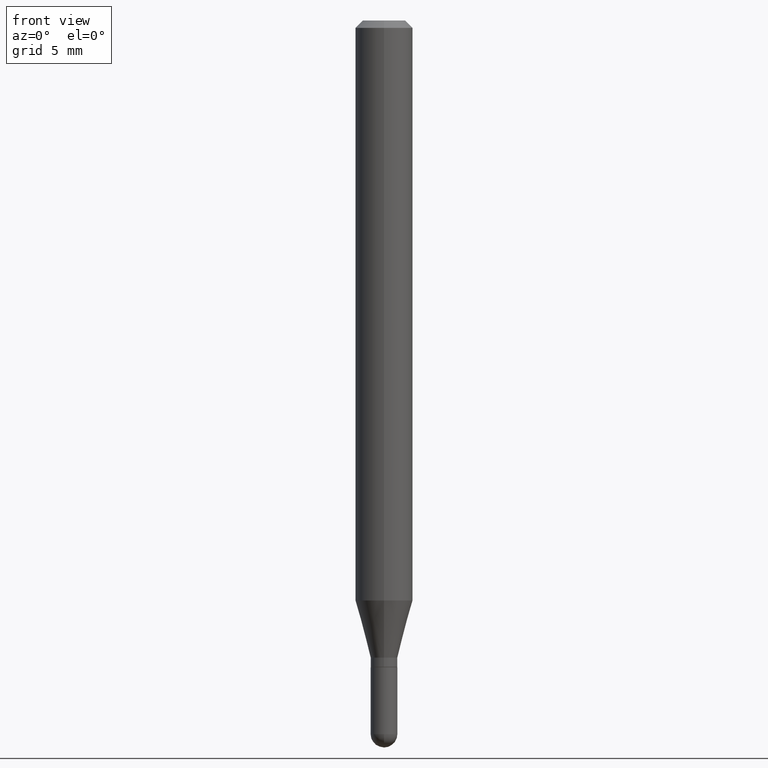
[diagram: clean part render]
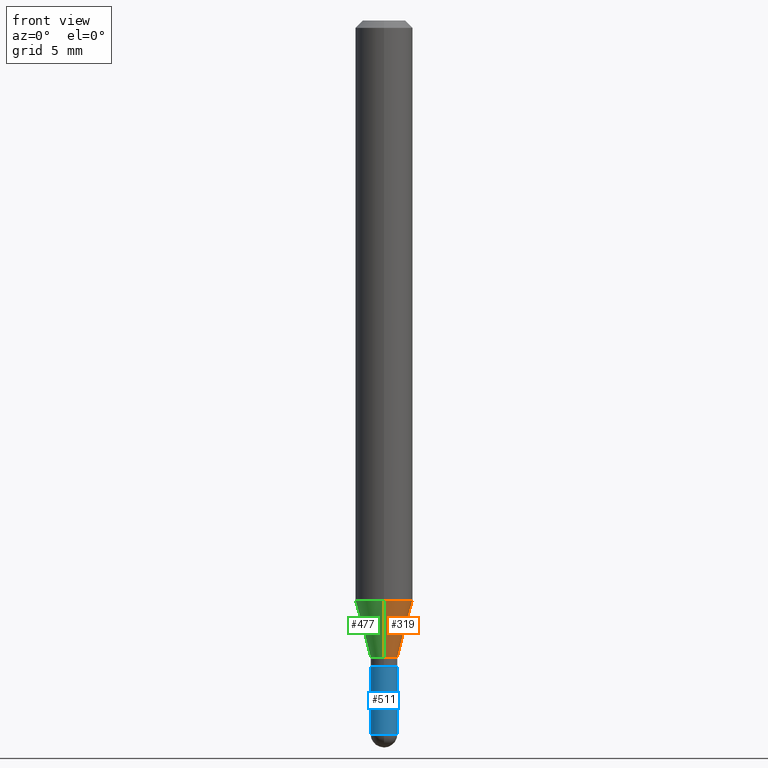
[diagram: same view with three faces highlighted in distinct colors, each labeled with its STEP entity id]
A machine part, front view with three faces highlighted in distinct colors.
Their STEP definitions:

[orange] entity #319 — the highlighted conical surface has half-angle 15 deg.
#1 = CONICAL_SURFACE ( 'NONE', #108, 0.02754999999999965463, 0.2617993877991502960 ) ;
#26 = AXIS2_PLACEMENT_3D ( 'NONE', #426, #385, #425 ) ;
#39 = LINE ( 'NONE', #216, #474 ) ;
#41 = DIRECTION ( 'NONE',  ( -6.982962677686265922E-15, -1.000000000000000000, 0.000000000000000000 ) ) ;
#64 = LINE ( 'NONE', #101, #447 ) ;
#78 = CIRCLE ( 'NONE', #193, 0.02754999999999965463 ) ;
#89 = CARTESIAN_POINT ( 'NONE',  ( 3.206236826016511107E-29, -4.577705994850046141E-15, -1.311099999999999488 ) ) ;
#91 = ORIENTED_EDGE ( 'NONE', *, *, #367, .T. ) ;
#101 = CARTESIAN_POINT ( 'NONE',  ( -1.923806217702221325E-16, -0.02755000000000422736, -1.311099999999999488 ) ) ;
#108 = AXIS2_PLACEMENT_3D ( 'NONE', #89, #368, #41 ) ;
#130 = EDGE_CURVE ( 'NONE', #338, #441, #39, .T. ) ;
#152 = DIRECTION ( 'NONE',  ( -1.807323732225330928E-15, -0.2588190451025182970, 0.9659258262890689783 ) ) ;
#169 = CARTESIAN_POINT ( 'NONE',  ( 3.206236826016511107E-29, -4.577705994850046141E-15, -1.311099999999999488 ) ) ;
#191 = CARTESIAN_POINT ( 'NONE',  ( -1.923806217702221325E-16, -0.02755000000000422736, -1.311099999999999488 ) ) ;
#193 = AXIS2_PLACEMENT_3D ( 'NONE', #169, #331, #476 ) ;
#216 = CARTESIAN_POINT ( 'NONE',  ( 1.957545237019371700E-16, 0.02754999999999507843, -1.311099999999999488 ) ) ;
#224 = EDGE_CURVE ( 'NONE', #409, #441, #482, .T. ) ;
#232 = EDGE_LOOP ( 'NONE', ( #91, #375, #298, #494 ) ) ;
#255 = VERTEX_POINT ( 'NONE', #191 ) ;
#263 = FACE_OUTER_BOUND ( 'NONE', #232, .T. ) ;
#265 = EDGE_CURVE ( 'NONE', #255, #409, #64, .T. ) ;
#273 = CARTESIAN_POINT ( 'NONE',  ( 4.195754854663679906E-16, 0.05904999999999580029, -1.193540399561579424 ) ) ;
#280 = DIRECTION ( 'NONE',  ( 1.839019923739601104E-15, 0.2588190451025250693, 0.9659258262890670910 ) ) ;
#296 = CARTESIAN_POINT ( 'NONE',  ( 3.076650045841527529E-16, 0.02754999999999507843, -1.311099999999999488 ) ) ;
#298 = ORIENTED_EDGE ( 'NONE', *, *, #224, .F. ) ;
#319 = ADVANCED_FACE ( 'NONE', ( #263 ), #1, .T. ) ;
#331 = DIRECTION ( 'NONE',  ( -2.445455591500657940E-29, 3.491500263023452192E-15, 1.000000000000000000 ) ) ;
#338 = VERTEX_POINT ( 'NONE', #296 ) ;
#367 = EDGE_CURVE ( 'NONE', #255, #338, #78, .T. ) ;
#368 = DIRECTION ( 'NONE',  ( -2.445455591500657940E-29, 3.491500263023452192E-15, 1.000000000000000000 ) ) ;
#375 = ORIENTED_EDGE ( 'NONE', *, *, #130, .T. ) ;
#385 = DIRECTION ( 'NONE',  ( -2.445455591500657940E-29, 3.491500263023452192E-15, 1.000000000000000000 ) ) ;
#409 = VERTEX_POINT ( 'NONE', #438 ) ;
#425 = DIRECTION ( 'NONE',  ( -6.982962677686265922E-15, -1.000000000000000000, 4.626330217890369336E-15 ) ) ;
#426 = CARTESIAN_POINT ( 'NONE',  ( 2.918750043789793122E-29, -4.167246618998369739E-15, -1.193540399561579202 ) ) ;
#438 = CARTESIAN_POINT ( 'NONE',  ( -4.123439461173449928E-16, -0.05905000000000418248, -1.193540399561578758 ) ) ;
#441 = VERTEX_POINT ( 'NONE', #273 ) ;
#447 = VECTOR ( 'NONE', #152, 39.37007874015748143 ) ;
#474 = VECTOR ( 'NONE', #280, 39.37007874015748143 ) ;
#476 = DIRECTION ( 'NONE',  ( -6.982962677686265922E-15, -1.000000000000000000, 0.000000000000000000 ) ) ;
#482 = CIRCLE ( 'NONE', #26, 0.05904999999999999832 ) ;
#494 = ORIENTED_EDGE ( 'NONE', *, *, #265, .F. ) ;

[blue] entity #511 — the highlighted cylindrical surface (edge-blend (fillet) strip) has radius 0.6998 mm, axis along (-0, 0, 1).
#12 = EDGE_CURVE ( 'NONE', #332, #347, #212, .T. ) ;
#17 = DIRECTION ( 'NONE',  ( 1.000000000000000000, -6.982962677686265922E-15, 4.876176775795936353E-29 ) ) ;
#24 = FACE_OUTER_BOUND ( 'NONE', #264, .T. ) ;
#63 = CARTESIAN_POINT ( 'NONE',  ( 3.254185340390560677E-29, -4.646114217598572614E-15, -1.330699999999999772 ) ) ;
#70 = DIRECTION ( 'NONE',  ( -2.445468806185136597E-29, 3.491481338843145583E-15, 1.000000000000000000 ) ) ;
#74 = CARTESIAN_POINT ( 'NONE',  ( -0.02755000000000000157, -4.691010045176429992E-15, -1.330699999999999772 ) ) ;
#81 = CARTESIAN_POINT ( 'NONE',  ( -1.923806217702204068E-16, -0.02755000000000508778, -1.468549999999999800 ) ) ;
#82 = CARTESIAN_POINT ( 'NONE',  ( 0.02754999999999999810, -5.079145190648592548E-15, -1.468549999999999800 ) ) ;
#88 = ORIENTED_EDGE ( 'NONE', *, *, #437, .F. ) ;
#96 = ORIENTED_EDGE ( 'NONE', *, *, #471, .T. ) ;
#105 = CARTESIAN_POINT ( 'NONE',  ( 3.591293215323181808E-29, -5.127414920158100475E-15, -1.468549999999999800 ) ) ;
#112 = DIRECTION ( 'NONE',  ( -2.445468806185136597E-29, 3.491481338843145583E-15, 1.000000000000000000 ) ) ;
#113 = EDGE_CURVE ( 'NONE', #269, #225, #320, .T. ) ;
#115 = DIRECTION ( 'NONE',  ( 1.000000000000000000, -6.982962677686257244E-15, 0.000000000000000000 ) ) ;
#146 = AXIS2_PLACEMENT_3D ( 'NONE', #105, #70, #115 ) ;
#147 = AXIS2_PLACEMENT_3D ( 'NONE', #277, #419, #388 ) ;
#148 = CYLINDRICAL_SURFACE ( 'NONE', #165, 0.02754999999999999810 ) ;
#153 = ORIENTED_EDGE ( 'NONE', *, *, #113, .F. ) ;
#165 = AXIS2_PLACEMENT_3D ( 'NONE', #317, #112, #17 ) ;
#172 = LINE ( 'NONE', #333, #493 ) ;
#192 = VECTOR ( 'NONE', #213, 39.37007874015748143 ) ;
#212 = CIRCLE ( 'NONE', #146, 0.02754999999999999810 ) ;
#213 = DIRECTION ( 'NONE',  ( -2.445468806185136877E-29, 3.491481338843145188E-15, 1.000000000000000000 ) ) ;
#225 = VERTEX_POINT ( 'NONE', #74 ) ;
#239 = CARTESIAN_POINT ( 'NONE',  ( -0.02754999999999999810, -4.691010045176429992E-15, -1.468549999999999800 ) ) ;
#250 = CIRCLE ( 'NONE', #346, 0.02755000000000000157 ) ;
#264 = EDGE_LOOP ( 'NONE', ( #153, #96, #484, #294, #88 ) ) ;
#269 = VERTEX_POINT ( 'NONE', #239 ) ;
#277 = CARTESIAN_POINT ( 'NONE',  ( 3.591293215323181808E-29, -5.127414920158100475E-15, -1.468549999999999800 ) ) ;
#292 = DIRECTION ( 'NONE',  ( -2.445468806185136877E-29, 3.491481338843145188E-15, 1.000000000000000000 ) ) ;
#294 = ORIENTED_EDGE ( 'NONE', *, *, #391, .T. ) ;
#317 = CARTESIAN_POINT ( 'NONE',  ( 0.000000000000000000, 0.000000000000000000, 0.000000000000000000 ) ) ;
#320 = LINE ( 'NONE', #395, #192 ) ;
#332 = VERTEX_POINT ( 'NONE', #81 ) ;
#333 = CARTESIAN_POINT ( 'NONE',  ( 0.02754999999999999810, -1.923806217702566205E-16, 1.343386701731780333E-30 ) ) ;
#337 = CIRCLE ( 'NONE', #147, 0.02754999999999999810 ) ;
#341 = DIRECTION ( 'NONE',  ( -2.445468806185136597E-29, 3.491481338843145583E-15, 1.000000000000000000 ) ) ;
#346 = AXIS2_PLACEMENT_3D ( 'NONE', #63, #341, #495 ) ;
#347 = VERTEX_POINT ( 'NONE', #82 ) ;
#364 = VERTEX_POINT ( 'NONE', #512 ) ;
#388 = DIRECTION ( 'NONE',  ( 1.000000000000000000, -6.982962677686257244E-15, 0.000000000000000000 ) ) ;
#391 = EDGE_CURVE ( 'NONE', #347, #364, #172, .T. ) ;
#395 = CARTESIAN_POINT ( 'NONE',  ( -0.02754999999999999810, 1.957545237019075877E-16, -1.355166617365226390E-30 ) ) ;
#419 = DIRECTION ( 'NONE',  ( -2.445468806185136597E-29, 3.491481338843145583E-15, 1.000000000000000000 ) ) ;
#437 = EDGE_CURVE ( 'NONE', #225, #364, #250, .T. ) ;
#471 = EDGE_CURVE ( 'NONE', #269, #332, #337, .T. ) ;
#484 = ORIENTED_EDGE ( 'NONE', *, *, #12, .T. ) ;
#493 = VECTOR ( 'NONE', #292, 39.37007874015748143 ) ;
#495 = DIRECTION ( 'NONE',  ( 1.000000000000000000, -6.982962677686256455E-15, 0.000000000000000000 ) ) ;
#511 = ADVANCED_FACE ( 'NONE', ( #24 ), #148, .T. ) ;
#512 = CARTESIAN_POINT ( 'NONE',  ( 0.02755000000000000157, -4.838494839368829407E-15, -1.330699999999999772 ) ) ;

[green] entity #477 — the highlighted conical surface has half-angle 15 deg.
#10 = ORIENTED_EDGE ( 'NONE', *, *, #265, .T. ) ;
#23 = ORIENTED_EDGE ( 'NONE', *, *, #370, .F. ) ;
#39 = LINE ( 'NONE', #216, #474 ) ;
#64 = LINE ( 'NONE', #101, #447 ) ;
#73 = EDGE_CURVE ( 'NONE', #338, #255, #314, .T. ) ;
#95 = CARTESIAN_POINT ( 'NONE',  ( 3.206236826016511107E-29, -4.577705994850046141E-15, -1.311099999999999488 ) ) ;
#101 = CARTESIAN_POINT ( 'NONE',  ( -1.923806217702221325E-16, -0.02755000000000422736, -1.311099999999999488 ) ) ;
#127 = DIRECTION ( 'NONE',  ( -6.982962677686265922E-15, -1.000000000000000000, 0.000000000000000000 ) ) ;
#130 = EDGE_CURVE ( 'NONE', #338, #441, #39, .T. ) ;
#131 = CARTESIAN_POINT ( 'NONE',  ( 2.918750043789793122E-29, -4.167246618998369739E-15, -1.193540399561579202 ) ) ;
#132 = DIRECTION ( 'NONE',  ( -6.982962677686265922E-15, -1.000000000000000000, 4.626330217890369336E-15 ) ) ;
#142 = FACE_OUTER_BOUND ( 'NONE', #231, .T. ) ;
#143 = ORIENTED_EDGE ( 'NONE', *, *, #130, .F. ) ;
#152 = DIRECTION ( 'NONE',  ( -1.807323732225330928E-15, -0.2588190451025182970, 0.9659258262890689783 ) ) ;
#191 = CARTESIAN_POINT ( 'NONE',  ( -1.923806217702221325E-16, -0.02755000000000422736, -1.311099999999999488 ) ) ;
#214 = AXIS2_PLACEMENT_3D ( 'NONE', #131, #258, #132 ) ;
#216 = CARTESIAN_POINT ( 'NONE',  ( 1.957545237019371700E-16, 0.02754999999999507843, -1.311099999999999488 ) ) ;
#223 = CIRCLE ( 'NONE', #214, 0.05904999999999999832 ) ;
#231 = EDGE_LOOP ( 'NONE', ( #143, #342, #10, #23 ) ) ;
#254 = DIRECTION ( 'NONE',  ( -2.445455591500657940E-29, 3.491500263023452192E-15, 1.000000000000000000 ) ) ;
#255 = VERTEX_POINT ( 'NONE', #191 ) ;
#258 = DIRECTION ( 'NONE',  ( -2.445455591500657940E-29, 3.491500263023452192E-15, 1.000000000000000000 ) ) ;
#265 = EDGE_CURVE ( 'NONE', #255, #409, #64, .T. ) ;
#267 = DIRECTION ( 'NONE',  ( -2.445455591500657940E-29, 3.491500263023452192E-15, 1.000000000000000000 ) ) ;
#273 = CARTESIAN_POINT ( 'NONE',  ( 4.195754854663679906E-16, 0.05904999999999580029, -1.193540399561579424 ) ) ;
#280 = DIRECTION ( 'NONE',  ( 1.839019923739601104E-15, 0.2588190451025250693, 0.9659258262890670910 ) ) ;
#296 = CARTESIAN_POINT ( 'NONE',  ( 3.076650045841527529E-16, 0.02754999999999507843, -1.311099999999999488 ) ) ;
#314 = CIRCLE ( 'NONE', #402, 0.02754999999999965463 ) ;
#315 = AXIS2_PLACEMENT_3D ( 'NONE', #95, #267, #412 ) ;
#338 = VERTEX_POINT ( 'NONE', #296 ) ;
#342 = ORIENTED_EDGE ( 'NONE', *, *, #73, .T. ) ;
#370 = EDGE_CURVE ( 'NONE', #441, #409, #223, .T. ) ;
#402 = AXIS2_PLACEMENT_3D ( 'NONE', #473, #254, #127 ) ;
#404 = CONICAL_SURFACE ( 'NONE', #315, 0.02754999999999965463, 0.2617993877991502960 ) ;
#409 = VERTEX_POINT ( 'NONE', #438 ) ;
#412 = DIRECTION ( 'NONE',  ( -6.982962677686265922E-15, -1.000000000000000000, 0.000000000000000000 ) ) ;
#438 = CARTESIAN_POINT ( 'NONE',  ( -4.123439461173449928E-16, -0.05905000000000418248, -1.193540399561578758 ) ) ;
#441 = VERTEX_POINT ( 'NONE', #273 ) ;
#447 = VECTOR ( 'NONE', #152, 39.37007874015748143 ) ;
#473 = CARTESIAN_POINT ( 'NONE',  ( 3.206236826016511107E-29, -4.577705994850046141E-15, -1.311099999999999488 ) ) ;
#474 = VECTOR ( 'NONE', #280, 39.37007874015748143 ) ;
#477 = ADVANCED_FACE ( 'NONE', ( #142 ), #404, .T. ) ;